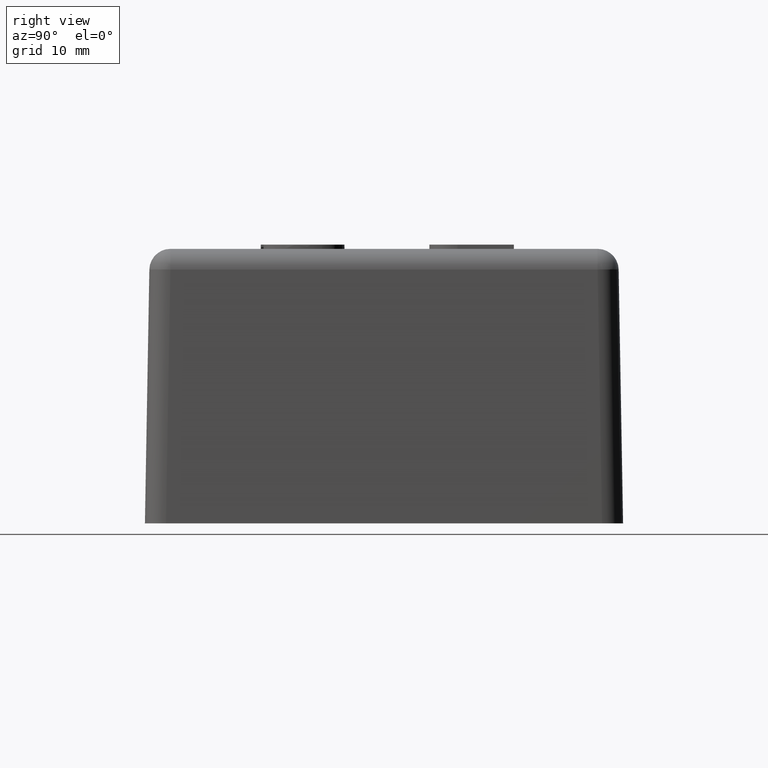
[diagram: clean part render]
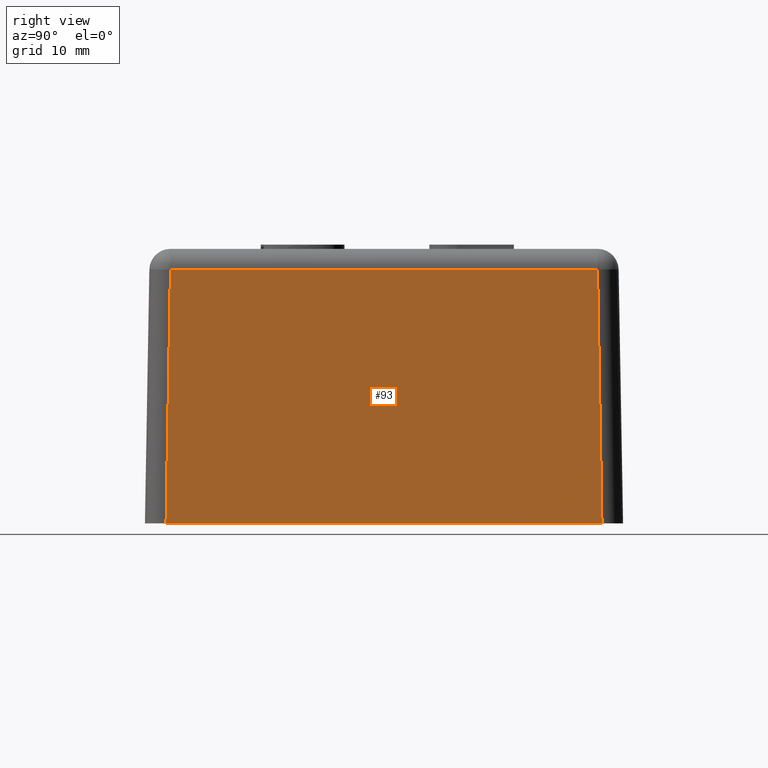
[diagram: same view with one face highlighted and labeled with its STEP entity id]
A machine part, right view. The second image highlights one B-rep face of the part: STEP entity #93.
In plain terms, the highlighted planar face has unit normal (0.9998, 0, 0.0175).
Its self-contained STEP definition (entity closure, byte-faithful):
#93 = ADVANCED_FACE( '', ( #203 ), #204, .T. );
#203 = FACE_OUTER_BOUND( '', #381, .T. );
#204 = PLANE( '', #382 );
#381 = EDGE_LOOP( '', ( #726, #727, #728, #729 ) );
#382 = AXIS2_PLACEMENT_3D( '', #730, #731, #732 );
#726 = ORIENTED_EDGE( '', *, *, #1280, .T. );
#727 = ORIENTED_EDGE( '', *, *, #1279, .T. );
#728 = ORIENTED_EDGE( '', *, *, #1282, .T. );
#729 = ORIENTED_EDGE( '', *, *, #1283, .T. );
#730 = CARTESIAN_POINT( '', ( 28.3000000000000, -28.3000000000000, 0.000000000000000 ) );
#731 = DIRECTION( '', ( 0.999847695156391, 0.000000000000000, 0.0174524064372835 ) );
#732 = DIRECTION( '', ( 0.0174524064372835, 0.000000000000000, -0.999847695156391 ) );
#1279 = EDGE_CURVE( '', #1542, #1545, #1547, .F. );
#1280 = EDGE_CURVE( '', #1548, #1542, #1549, .T. );
#1282 = EDGE_CURVE( '', #1545, #1551, #1552, .F. );
#1283 = EDGE_CURVE( '', #1551, #1548, #1553, .F. );
#1542 = VERTEX_POINT( '', #2059 );
#1545 = VERTEX_POINT( '', #2062 );
#1547 = LINE( '', #2064, #2065 );
#1548 = VERTEX_POINT( '', #2066 );
#1549 = LINE( '', #2067, #2068 );
#1551 = VERTEX_POINT( '', #2070 );
#1552 = LINE( '', #2071, #2072 );
#1553 = LINE( '', #2073, #2074 );
#2059 = CARTESIAN_POINT( '', ( 27.7755864699347, 25.2759672320437, 30.0436310160932 ) );
#2062 = CARTESIAN_POINT( '', ( 27.7755864699347, -25.2759672320437, 30.0436310160932 ) );
#2064 = CARTESIAN_POINT( '', ( 27.7755864699347, -25.2330911519419, 30.0436310160932 ) );
#2065 = VECTOR( '', #2399, 1000.00000000000 );
#2066 = CARTESIAN_POINT( '', ( 28.3000000000000, 25.8003807621090, 0.000000000000000 ) );
#2067 = CARTESIAN_POINT( '', ( 28.2835267724141, 25.7839075345231, 0.943750576329729 ) );
#2068 = VECTOR( '', #2400, 1000.00000000000 );
#2070 = CARTESIAN_POINT( '', ( 28.3000000000000, -25.8003807621090, 0.000000000000000 ) );
#2071 = CARTESIAN_POINT( '', ( 28.3007611184247, -25.8011418805338, -0.0436044453501648 ) );
#2072 = VECTOR( '', #2404, 1000.00000000000 );
#2073 = CARTESIAN_POINT( '', ( 28.3000000000000, -28.3000000000000, 0.000000000000000 ) );
#2074 = VECTOR( '', #2405, 1000.00000000000 );
#2399 = DIRECTION( '', ( 0.000000000000000, 1.00000000000000, 0.000000000000000 ) );
#2400 = DIRECTION( '', ( -0.0174497491606827, -0.0174497491606827, 0.999695459881887 ) );
#2404 = DIRECTION( '', ( -0.0174497491606827, 0.0174497491606827, 0.999695459881887 ) );
#2405 = DIRECTION( '', ( 0.000000000000000, -1.00000000000000, 0.000000000000000 ) );